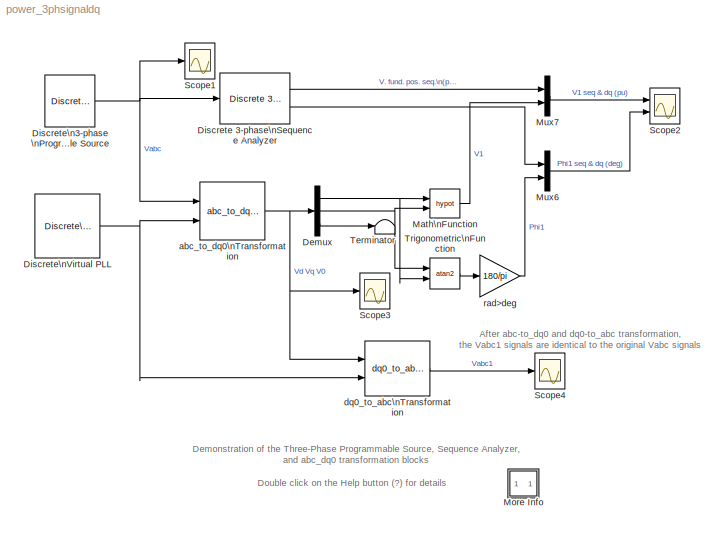
MODEL power_3phsignaldq
KIND model
BLOCK [Demux] Demux
  Outputs = 3
  Ports = [1, 3]
BLOCK [Reference] Discrete 3-phase\nSequence Analyzer  REF=powerlib_extras/Discrete\nMeasurements/Discrete 3-phase\nSequence Analyzer
  Freq = 60
  Par_Init = [1 15]
  Ports = [1, 2]
  SourceBlock = powerlib_extras/Discrete\nMeasurements/Discrete 3-phase\nSequence Analyzer
  SourceType = Discrete 3-Phase Sequence Analyzer
  Ts = 50e-6
  n = 1
  seq = Positive
BLOCK [Reference] Discrete\n3-phase \nProgrammable Source  REF=powerlib_extras/Discrete \nControl Blocks/Discrete\n3-phase \nProgrammable Source
  HarmonicGeneration = on
  Par_HarmoA = [1 0.3 -30 2]
  Par_HarmoB = [1 0.0 0.0 1]
  Par_Timing_Harmo = [0.1  1]
  Par_Timing_Variation = [0.05 1]
  Par_Vps = [1.0  15  60]
  Ports = [0, 1]
  SinglePhase = on
  SourceBlock = powerlib_extras/Discrete \nControl Blocks/Discrete\n3-phase \nProgrammable Source
  SourceType = Discrete 3-phase Programmable Source
  Ts = 50e-6
  VariationEntity = Amplitude
  VariationFreq = 2
  VariationMag = 0.3
  VariationRate = 10
  VariationStep = 0.5
  VariationType = Step
  Xtime = [0 0.1 0.15 0.2]
  Yampli = [1 0.2 1.2 1.0]
BLOCK [Reference] Discrete\nVirtual PLL  REF=powerlib_extras/Discrete \nControl Blocks/Discrete\nVirtual PLL
  Freq = 60
  Phase = 0
  Ports = [0, 3]
  SourceBlock = powerlib_extras/Discrete \nControl Blocks/Discrete\nVirtual PLL
  SourceType = Discrete Virtual PLL
  Ts = 50e-6
BLOCK [Math] Math\nFunction
  Operator = hypot
  Ports = [2, 1]
BLOCK [SubSystem] More Info
  MaskDisplay = disp('?')
  MaskIconFrame = on
  MaskIconOpaque = on
  MaskIconRotate = none
  MaskIconUnits = autoscale
  MinAlgLoopOccurrences = off
  Ports = []
  RTWSystemCode = Auto
  TreatAsAtomicUnit = off
BLOCK [Mux] Mux6
  Inputs = 2
  Ports = [2, 1]
BLOCK [Mux] Mux7
  Inputs = 2
  Ports = [2, 1]
BLOCK [Scope] Scope1
  DataFormat = Array
  LimitDataPoints = off
  NumInputPorts = 1
  Ports = [1]
  SampleInput = on
  TickLabels = on
  TimeRange = 0.15
  YMax = 2
  YMin = -2
BLOCK [Scope] Scope2
  DataFormat = Array
  LimitDataPoints = off
  NumInputPorts = 2
  Ports = [2]
  SampleInput = on
  TimeRange = 0.15
  YMax = 2~30
  YMin = 1~0
BLOCK [Scope] Scope3
  DataFormat = Array
  LimitDataPoints = off
  NumInputPorts = 1
  Ports = [1]
  SampleInput = on
  TickLabels = on
  TimeRange = 0.16
  YMax = 1.5
  YMin = -0.5
BLOCK [Scope] Scope4
  DataFormat = Array
  LimitDataPoints = off
  NumInputPorts = 1
  Ports = [1]
  SampleInput = on
  TickLabels = on
  TimeRange = 0.15
  YMax = 1.5
  YMin = -1.5
BLOCK [Terminator] Terminator
BLOCK [Trigonometry] Trigonometric\nFunction
  Operator = atan2
  Ports = [2, 1]
BLOCK [Reference] abc_to_dq0\nTransformation  REF=powerlib_extras/Measurements/abc_to_dq0\nTransformation
  Ports = [2, 1]
  SourceBlock = powerlib_extras/Measurements/abc_to_dq0\nTransformation
  SourceType = abc to dq0 Transformation
BLOCK [Reference] dq0_to_abc\nTransformation  REF=powerlib_extras/Measurements/dq0_to_abc\nTransformation
  Ports = [2, 1]
  SourceBlock = powerlib_extras/Measurements/dq0_to_abc\nTransformation
  SourceType = dq0 to abc Transformation
BLOCK [Gain] rad>deg
  Gain = 180/pi
ANNOTATION (root): After abc-to_dq0 and dq0-to_abc transformation,\nthe Vabc1 signals are identical to the original Vabc signals
ANNOTATION (root): Demonstration of the Three-Phase Programmable Source, Sequence Analyzer,\n and abc_dq0 transformation blocks
ANNOTATION (root): Double click on the Help button (?) for details
ANNOTATION More Info: A Discrete 3-Phase ProgrammableSource block is used to generate a 1 pu, 15 degrees positive sequence voltage.\nAt t = 0.05 s the positive sequence voltage is increased to 1.5 pu.\nAt t = 0.1 s an unbalance is introduced by adding a 0.3 pu negative sequence component with a phase of -30 degrees.\n\nThe magnitude and phase of the positive-sequence component is evaluated in two diiferent ways:\n1) Se...<+287ch>
ANNOTATION More Info: Choose Simulation/Start and observe the instantaneous signals Vabc on Scope,\n the signal magnitude (V1) and phase (Phi1) returned by the Sequence Analyzer (Scope2)\n and the d, q and 0 components displayed on Scope3. \n\nNote that the Sequence Analyzer using Fourier analysis is immune to harmonics and unbalance (yellow traces of Scope2). \nHowever, its response to a step is a one-cycle ramp.\n\nT...<+159ch>
ANNOTATION More Info: Demonstration
ANNOTATION More Info: G. Sybille (Hydro-Quebec)
ANNOTATION More Info: System Description
ANNOTATION More Info: This demonstration ilustrates use of the Three-Phase Programmable Source,\nabc_dq0, and Sequence Analyzer blocks
NET Demux:1 -> Math\nFunction:1, Trigonometric\nFunction:2
NET Demux:2 -> Math\nFunction:2, Trigonometric\nFunction:1
LINE Demux:3 -> Terminator:1
LINE Discrete 3-phase\nSequence Analyzer:1 -> Mux7:1
LINE Discrete 3-phase\nSequence Analyzer:2 -> Mux6:1
NET Discrete\n3-phase \nProgrammable Source:1 -> Discrete 3-phase\nSequence Analyzer:1, Scope1:1, abc_to_dq0\nTransformation:1
NET Discrete\nVirtual PLL:2 -> abc_to_dq0\nTransformation:2, dq0_to_abc\nTransformation:2
LINE Math\nFunction:1 -> Mux7:2
LINE Mux6:1 -> Scope2:2
LINE Mux7:1 -> Scope2:1
LINE Trigonometric\nFunction:1 -> rad>deg:1
NET abc_to_dq0\nTransformation:1 -> Demux:1, Scope3:1, dq0_to_abc\nTransformation:1
LINE dq0_to_abc\nTransformation:1 -> Scope4:1
LINE rad>deg:1 -> Mux6:2
note: NET lines group one-source signal fan-out (src -> all destinations, sorted); 1:1 wires keep LINE
